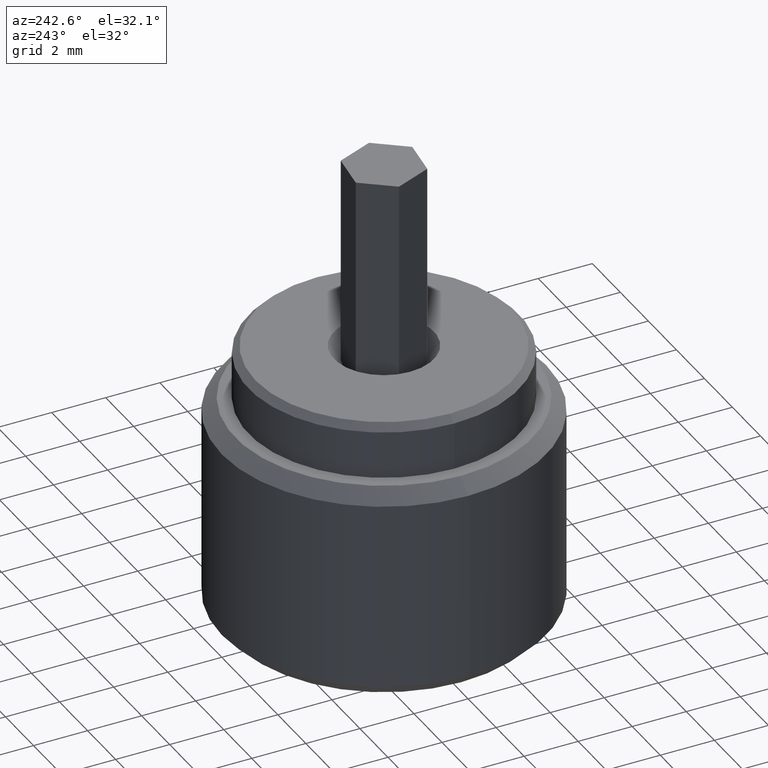
[diagram: clean part render]
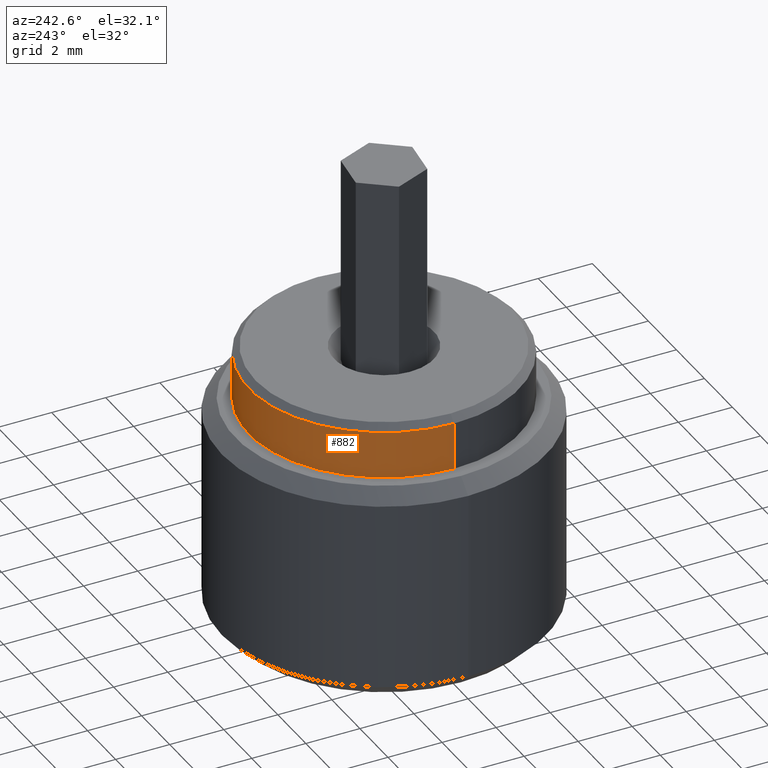
[diagram: same view with one face highlighted and labeled with its STEP entity id]
A machine part, auxiliary view. The second image highlights one B-rep face of the part: STEP entity #882.
In plain terms, the highlighted cylindrical surface (partial cylindrical patch) has radius 5 mm, axis along (0, 0, 1).
Its self-contained STEP definition (entity closure, byte-faithful):
#104 = AXIS2_PLACEMENT_3D ( 'NONE', #340, #861, #409 ) ;
#108 = DIRECTION ( 'NONE',  ( 1.000000000000000000, 0.000000000000000000, 0.000000000000000000 ) ) ;
#112 = DIRECTION ( 'NONE',  ( -0.000000000000000000, -0.000000000000000000, 1.000000000000000000 ) ) ;
#115 = VERTEX_POINT ( 'NONE', #529 ) ;
#127 = ORIENTED_EDGE ( 'NONE', *, *, #288, .F. ) ;
#151 = CARTESIAN_POINT ( 'NONE',  ( -5.000000000000000000, 6.123233995736765296E-16, 9.750000000000005329 ) ) ;
#194 = EDGE_LOOP ( 'NONE', ( #127, #433, #849, #769 ) ) ;
#197 = CARTESIAN_POINT ( 'NONE',  ( -5.000000000000000000, 6.123233995736765296E-16, -16.97056274847714263 ) ) ;
#214 = DIRECTION ( 'NONE',  ( -0.000000000000000000, -0.000000000000000000, 1.000000000000000000 ) ) ;
#232 = CIRCLE ( 'NONE', #506, 5.000000000000000000 ) ;
#269 = CARTESIAN_POINT ( 'NONE',  ( 0.000000000000000000, 0.000000000000000000, -16.97056274847714263 ) ) ;
#288 = EDGE_CURVE ( 'NONE', #873, #115, #641, .T. ) ;
#340 = CARTESIAN_POINT ( 'NONE',  ( 0.000000000000000000, 0.000000000000000000, 8.000000000000000000 ) ) ;
#406 = DIRECTION ( 'NONE',  ( 0.000000000000000000, 0.000000000000000000, -1.000000000000000000 ) ) ;
#409 = DIRECTION ( 'NONE',  ( 1.000000000000000000, 0.000000000000000000, 0.000000000000000000 ) ) ;
#425 = VECTOR ( 'NONE', #214, 1000.000000000000000 ) ;
#433 = ORIENTED_EDGE ( 'NONE', *, *, #457, .T. ) ;
#439 = CARTESIAN_POINT ( 'NONE',  ( 5.000000000000000000, 0.000000000000000000, 9.750000000000005329 ) ) ;
#457 = EDGE_CURVE ( 'NONE', #873, #951, #464, .T. ) ;
#464 = LINE ( 'NONE', #197, #425 ) ;
#468 = CARTESIAN_POINT ( 'NONE',  ( 5.000000000000000000, 0.000000000000000000, -16.97056274847714263 ) ) ;
#475 = VECTOR ( 'NONE', #767, 1000.000000000000000 ) ;
#506 = AXIS2_PLACEMENT_3D ( 'NONE', #778, #406, #108 ) ;
#529 = CARTESIAN_POINT ( 'NONE',  ( 5.000000000000000000, 0.000000000000000000, 8.000000000000000000 ) ) ;
#538 = LINE ( 'NONE', #468, #475 ) ;
#576 = CARTESIAN_POINT ( 'NONE',  ( -5.000000000000000000, 6.123233995736765296E-16, 8.000000000000000000 ) ) ;
#641 = CIRCLE ( 'NONE', #104, 5.000000000000000000 ) ;
#669 = EDGE_CURVE ( 'NONE', #951, #878, #232, .T. ) ;
#678 = EDGE_CURVE ( 'NONE', #115, #878, #538, .T. ) ;
#767 = DIRECTION ( 'NONE',  ( -0.000000000000000000, -0.000000000000000000, 1.000000000000000000 ) ) ;
#769 = ORIENTED_EDGE ( 'NONE', *, *, #678, .F. ) ;
#778 = CARTESIAN_POINT ( 'NONE',  ( 0.000000000000000000, 0.000000000000000000, 9.750000000000005329 ) ) ;
#813 = DIRECTION ( 'NONE',  ( 1.000000000000000000, 0.000000000000000000, 0.000000000000000000 ) ) ;
#849 = ORIENTED_EDGE ( 'NONE', *, *, #669, .T. ) ;
#861 = DIRECTION ( 'NONE',  ( -0.000000000000000000, -0.000000000000000000, -1.000000000000000000 ) ) ;
#873 = VERTEX_POINT ( 'NONE', #576 ) ;
#875 = AXIS2_PLACEMENT_3D ( 'NONE', #269, #112, #813 ) ;
#878 = VERTEX_POINT ( 'NONE', #439 ) ;
#882 = ADVANCED_FACE ( 'NONE', ( #887 ), #958, .T. ) ;
#887 = FACE_OUTER_BOUND ( 'NONE', #194, .T. ) ;
#951 = VERTEX_POINT ( 'NONE', #151 ) ;
#958 = CYLINDRICAL_SURFACE ( 'NONE', #875, 5.000000000000000000 ) ;